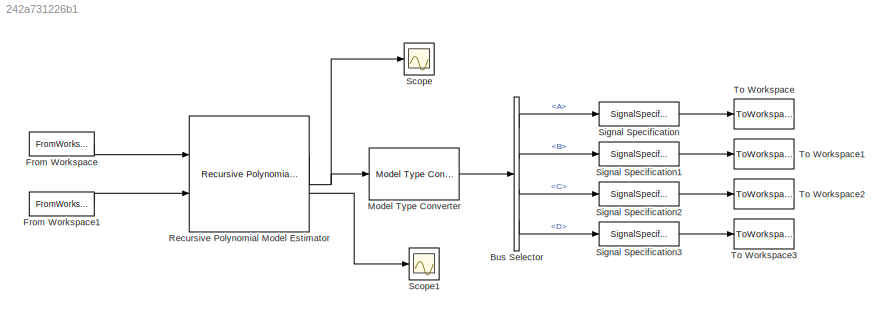
MODEL slx_242a731226b1
KIND model
CONFIG AbsTol = auto
CONFIG EnableMultiTasking = off
CONFIG FixedStep = auto
CONFIG MaxStep = auto
CONFIG MinStep = auto
CONFIG RelTol = 1e-3
CONFIG SampleTimeConstraint = Unconstrained
CONFIG Solver = VariableStepAuto
CONFIG SolverName = VariableStepAuto
CONFIG StartTime = 0.0
CONFIG StopTime = 14702
BLOCK [BusSelector] Bus Selector
  OutputAsBus = off
  OutputSignals = A,B,C,D
  Ports = [1, 4]
BLOCK [FromWorkspace] From Workspace
  SampleTime = 1
  VariableName = SinalSimulink
  ZeroCross = on
BLOCK [FromWorkspace] From Workspace1
  SampleTime = 1
  VariableName = TempSimulink
  ZeroCross = on
BLOCK [Reference] Model Type Converter  REF=slident/Estimators/Model Type Converter  (lib defined in mdl_f7d4911ca73a)
  Ports = [1, 1]
  SourceBlock = slident/Estimators/Model Type Converter
  SourceProductBaseCode = ID
  SourceProductName = System Identification Toolbox
  SourceType = idModelTypeConverter
BLOCK [Reference] Recursive Polynomial Model Estimator  REF=slident/Estimators/Recursive Polynomial Model Estimator  (lib defined in mdl_f7d4911ca73a)
  Ports = [2, 2]
  SourceBlock = slident/Estimators/Recursive Polynomial Model Estimator
  SourceProductBaseCode = ID
  SourceProductName = System Identification Toolbox
  SourceType = idEstimatorsPolyModel
BLOCK [Scope] Scope
  NumInputPorts = 1
  Ports = [1]
  ScopeSpecificationString = Simulink.scopes.TimeScopeBlockCfg('CurrentConfiguration', extmgr.ConfigurationSet(extmgr.Configuration('Core','General UI',true),extmgr.Configuration('Core','Source UI',true),extmgr.Configuration('Sources','WiredSimulink',true),extmgr.Configuration('Visuals','Time Domain',true,'SerializedDisplays',{struct('MinYLimReal','-0.53026','MaxYLimReal','0.20497','YLabelReal','','MinYLimMag','0.00000','MaxY...<+1609ch>
BLOCK [Scope] Scope1
  NumInputPorts = 1
  Ports = [1]
  ScopeSpecificationString = Simulink.scopes.TimeScopeBlockCfg('CurrentConfiguration', extmgr.ConfigurationSet(extmgr.Configuration('Core','General UI',true),extmgr.Configuration('Core','Source UI',true),extmgr.Configuration('Sources','WiredSimulink',true,'DataLoggingVariableName','ScopeData1'),extmgr.Configuration('Visuals','Time Domain',true,'SerializedDisplays',{struct('MinYLimReal','-0.53026','MaxYLimReal','0.20497','YLab...<+1457ch>
BLOCK [SignalSpecification] Signal Specification
  Dimensions = [2 2]
BLOCK [SignalSpecification] Signal Specification1
  Dimensions = [2 1]
BLOCK [SignalSpecification] Signal Specification2
  Dimensions = [1 2]
BLOCK [SignalSpecification] Signal Specification3
  Dimensions = [1 1]
BLOCK [ToWorkspace] To Workspace
  FixptAsFi = on
  MaxDataPoints = inf
  Ports = [1]
  SampleTime = -1
  Save2DSignal = 3-D array (concatenate along third dimension)
  SaveFormat = Timeseries
  VariableName = A
BLOCK [ToWorkspace] To Workspace1
  FixptAsFi = on
  MaxDataPoints = inf
  Ports = [1]
  SampleTime = -1
  Save2DSignal = 3-D array (concatenate along third dimension)
  SaveFormat = Timeseries
  VariableName = B
BLOCK [ToWorkspace] To Workspace2
  FixptAsFi = on
  MaxDataPoints = inf
  Ports = [1]
  SampleTime = -1
  Save2DSignal = 3-D array (concatenate along third dimension)
  SaveFormat = Timeseries
  VariableName = C
BLOCK [ToWorkspace] To Workspace3
  FixptAsFi = on
  MaxDataPoints = inf
  Ports = [1]
  SampleTime = -1
  Save2DSignal = 3-D array (concatenate along third dimension)
  SaveFormat = Timeseries
  VariableName = D
LINE Bus Selector:1 -> Signal Specification:1
LINE Bus Selector:2 -> Signal Specification1:1
LINE Bus Selector:3 -> Signal Specification2:1
LINE Bus Selector:4 -> Signal Specification3:1
LINE From Workspace1:1 -> Recursive Polynomial Model Estimator:2
LINE From Workspace:1 -> Recursive Polynomial Model Estimator:1
LINE Model Type Converter:1 -> Bus Selector:1
NET Recursive Polynomial Model Estimator:1 -> Model Type Converter:1, Scope:1
LINE Recursive Polynomial Model Estimator:2 -> Scope1:1
LINE Signal Specification1:1 -> To Workspace1:1
LINE Signal Specification2:1 -> To Workspace2:1
LINE Signal Specification3:1 -> To Workspace3:1
LINE Signal Specification:1 -> To Workspace:1
note: NET lines group one-source signal fan-out (src -> all destinations, sorted); 1:1 wires keep LINE
